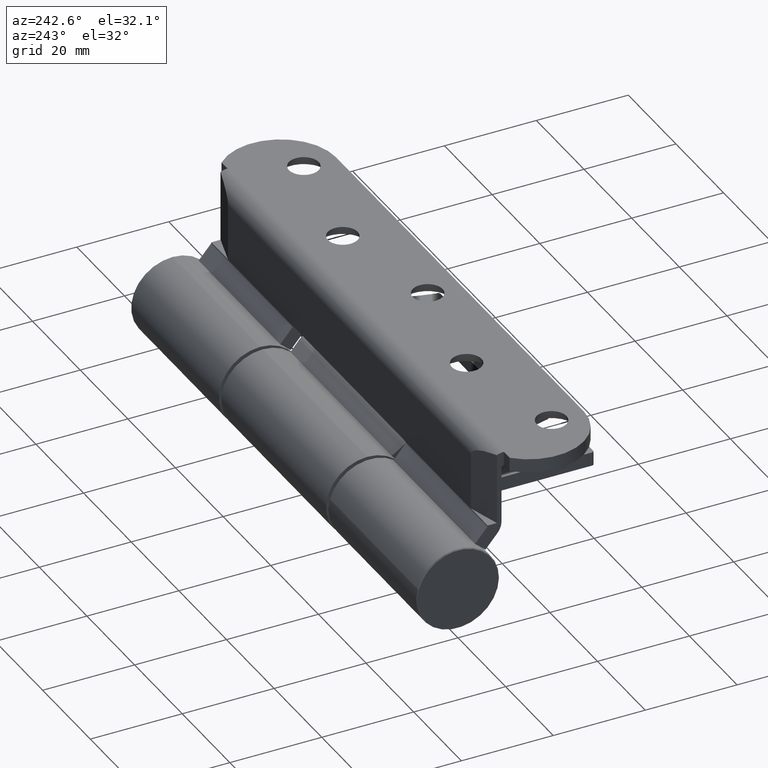
[diagram: clean part render]
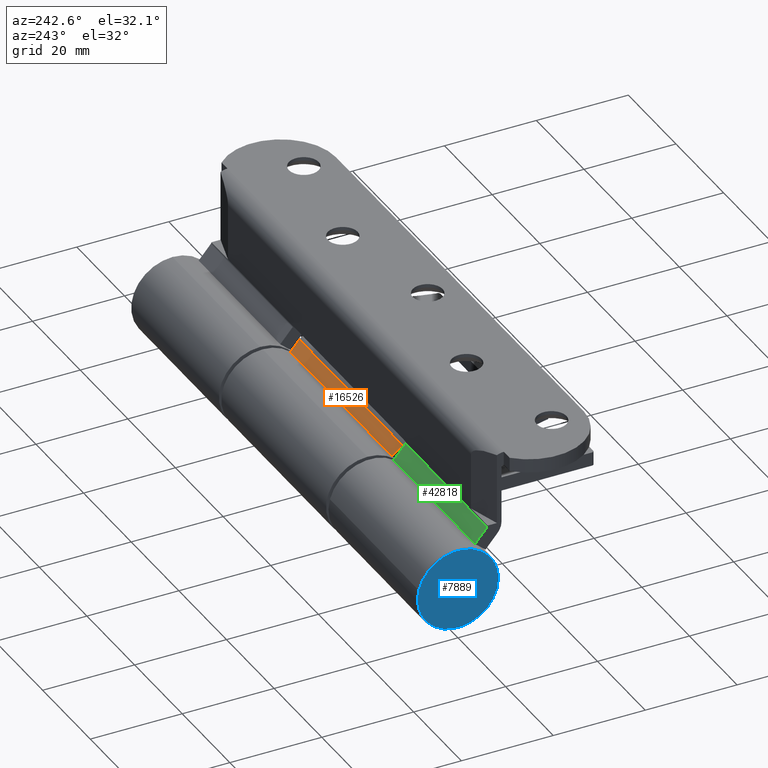
[diagram: same view with three faces highlighted in distinct colors, each labeled with its STEP entity id]
A machine part, auxiliary view with three faces highlighted in distinct colors.
Their STEP definitions:

[orange] entity #16526 — the highlighted planar face has unit normal (-0, -0.6698, -0.7426).
#1108 = VECTOR ( 'NONE', #43775, 1000.000000000000114 ) ;
#1415 = CARTESIAN_POINT ( 'NONE',  ( -7.847930449377619411, -9.098935908627518998, 42.00000000000000000 ) ) ;
#3538 = CARTESIAN_POINT ( 'NONE',  ( -5.678297278168219719, -7.141914310655608666, 42.00000000000000000 ) ) ;
#3735 = EDGE_CURVE ( 'NONE', #31761, #22497, #16069, .T. ) ;
#4716 = DIRECTION ( 'NONE',  ( -0.6697871817255042215, 0.7425531167507186669, -5.473822126268817899E-48 ) ) ;
#10597 = VECTOR ( 'NONE', #44746, 1000.000000000000000 ) ;
#12052 = VERTEX_POINT ( 'NONE', #17942 ) ;
#12161 = DIRECTION ( 'NONE',  ( -1.026341648675405863E-48, 0.000000000000000000, -1.000000000000000000 ) ) ;
#13240 = PLANE ( 'NONE',  #36281 ) ;
#13702 = EDGE_LOOP ( 'NONE', ( #37325, #47317, #45358, #16587 ) ) ;
#14293 = CARTESIAN_POINT ( 'NONE',  ( -8.937882804729733621, -10.08207920146140424, -22.00000000000000000 ) ) ;
#14747 = LINE ( 'NONE', #44725, #44274 ) ;
#16069 = LINE ( 'NONE', #1415, #22406 ) ;
#16526 = ADVANCED_FACE ( 'NONE', ( #38125 ), #13240, .F. ) ;
#16587 = ORIENTED_EDGE ( 'NONE', *, *, #28261, .F. ) ;
#17942 = CARTESIAN_POINT ( 'NONE',  ( -5.678297278168217943, -7.141914310655608666, -21.24999999999999645 ) ) ;
#17959 = LINE ( 'NONE', #3538, #10597 ) ;
#20823 = CARTESIAN_POINT ( 'NONE',  ( -7.847930449377619411, -9.098935908627518998, -21.74921220509393294 ) ) ;
#22213 = EDGE_CURVE ( 'NONE', #22497, #12052, #36238, .T. ) ;
#22406 = VECTOR ( 'NONE', #12161, 1000.000000000000000 ) ;
#22497 = VERTEX_POINT ( 'NONE', #20823 ) ;
#24204 = DIRECTION ( 'NONE',  ( -0.7425531167507186669, -0.6697871817255042215, -4.105366594701612512E-48 ) ) ;
#28261 = EDGE_CURVE ( 'NONE', #47093, #12052, #17959, .T. ) ;
#28959 = CARTESIAN_POINT ( 'NONE',  ( -5.678297278168211726, -7.141914310655602449, 21.25000000000000000 ) ) ;
#31761 = VERTEX_POINT ( 'NONE', #34944 ) ;
#34944 = CARTESIAN_POINT ( 'NONE',  ( -7.847930449377619411, -9.098935908627518998, 21.74921220509394004 ) ) ;
#36238 = LINE ( 'NONE', #14293, #1108 ) ;
#36281 = AXIS2_PLACEMENT_3D ( 'NONE', #46391, #4716, #24204 ) ;
#37325 = ORIENTED_EDGE ( 'NONE', *, *, #41253, .T. ) ;
#37884 = DIRECTION ( 'NONE',  ( -0.7319467401631388759, -0.6602201690463284089, 0.1684140669569851589 ) ) ;
#38125 = FACE_OUTER_BOUND ( 'NONE', #13702, .T. ) ;
#41253 = EDGE_CURVE ( 'NONE', #47093, #31761, #14747, .T. ) ;
#43775 = DIRECTION ( 'NONE',  ( 0.7319467401631388759, 0.6602201690463284089, 0.1684140669569851589 ) ) ;
#44274 = VECTOR ( 'NONE', #37884, 1000.000000000000114 ) ;
#44725 = CARTESIAN_POINT ( 'NONE',  ( -8.937882804729731845, -10.08207920146140424, 22.00000000000000000 ) ) ;
#44746 = DIRECTION ( 'NONE',  ( -1.026341648675405863E-48, 0.000000000000000000, -1.000000000000000000 ) ) ;
#45358 = ORIENTED_EDGE ( 'NONE', *, *, #22213, .T. ) ;
#46391 = CARTESIAN_POINT ( 'NONE',  ( -7.847930449377617634, -9.098935908627515445, 42.00000000000000000 ) ) ;
#47093 = VERTEX_POINT ( 'NONE', #28959 ) ;
#47317 = ORIENTED_EDGE ( 'NONE', *, *, #3735, .T. ) ;

[blue] entity #7889 — the highlighted planar face has unit normal (1, -0, 0).
#16 = CIRCLE ( 'NONE', #39732, 8.800000000000004263 ) ;
#1984 = VERTEX_POINT ( 'NONE', #7108 ) ;
#4672 = VERTEX_POINT ( 'NONE', #48198 ) ;
#5330 = EDGE_LOOP ( 'NONE', ( #33064, #33951 ) ) ;
#6700 = PLANE ( 'NONE',  #10150 ) ;
#7108 = CARTESIAN_POINT ( 'NONE',  ( 37.00000000000000711, 1.089935651241144357E-15, -8.799999999999997158 ) ) ;
#7889 = ADVANCED_FACE ( 'NONE', ( #10392 ), #6700, .F. ) ;
#9088 = CARTESIAN_POINT ( 'NONE',  ( 37.00000000000000711, -4.814824860968089633E-32, 8.673617379884039416E-16 ) ) ;
#10150 = AXIS2_PLACEMENT_3D ( 'NONE', #36718, #11092, #21606 ) ;
#10392 = FACE_OUTER_BOUND ( 'NONE', #5330, .T. ) ;
#11092 = DIRECTION ( 'NONE',  ( -1.000000000000000000, -4.650432772331849413E-32, 2.203093373026480964E-32 ) ) ;
#21606 = DIRECTION ( 'NONE',  ( 2.203093373026480964E-32, 0.000000000000000000, 1.000000000000000000 ) ) ;
#23238 = DIRECTION ( 'NONE',  ( -1.000000000000000000, -4.650432772331849413E-32, -1.263828560216439197E-31 ) ) ;
#23945 = DIRECTION ( 'NONE',  ( 0.000000000000000000, 0.000000000000000000, 1.000000000000000000 ) ) ;
#25756 = CARTESIAN_POINT ( 'NONE',  ( 37.00000000000000711, -4.814824860968089633E-32, 8.673617379884039416E-16 ) ) ;
#31785 = EDGE_CURVE ( 'NONE', #4672, #1984, #46483, .T. ) ;
#32833 = DIRECTION ( 'NONE',  ( 0.000000000000000000, 0.000000000000000000, 1.000000000000000000 ) ) ;
#33064 = ORIENTED_EDGE ( 'NONE', *, *, #31785, .F. ) ;
#33951 = ORIENTED_EDGE ( 'NONE', *, *, #35642, .F. ) ;
#35642 = EDGE_CURVE ( 'NONE', #1984, #4672, #16, .T. ) ;
#36718 = CARTESIAN_POINT ( 'NONE',  ( 37.00000000000000711, 8.800000000000002487, 1.061530116225963303E-15 ) ) ;
#39732 = AXIS2_PLACEMENT_3D ( 'NONE', #25756, #39888, #32833 ) ;
#39888 = DIRECTION ( 'NONE',  ( -1.000000000000000000, -4.650432772331849413E-32, -1.263828560216439197E-31 ) ) ;
#41821 = AXIS2_PLACEMENT_3D ( 'NONE', #9088, #23238, #23945 ) ;
#46483 = CIRCLE ( 'NONE', #41821, 8.800000000000004263 ) ;
#48198 = CARTESIAN_POINT ( 'NONE',  ( 37.00000000000000711, -4.814824860968089633E-32, 8.800000000000006040 ) ) ;

[green] entity #42818 — the highlighted planar face has unit normal (0, 0.7575, 0.6528).
#147 = CARTESIAN_POINT ( 'NONE',  ( -24.12125155963738976, 64.00000000000000000, 16.14068967821274470 ) ) ;
#2848 = VERTEX_POINT ( 'NONE', #18702 ) ;
#2971 = EDGE_LOOP ( 'NONE', ( #29208, #28168, #41326, #39032 ) ) ;
#3320 = CARTESIAN_POINT ( 'NONE',  ( -26.76069628027380887, 64.00000000000000000, 19.20326990000362599 ) ) ;
#3763 = DIRECTION ( 'NONE',  ( -0.6528387823126776679, 0.000000000000000000, 0.7574968807252608904 ) ) ;
#3875 = VECTOR ( 'NONE', #44525, 1000.000000000000000 ) ;
#6308 = VECTOR ( 'NONE', #23782, 1000.000000000000114 ) ;
#7416 = DIRECTION ( 'NONE',  ( -0.7574968807252608904, 0.000000000000000000, -0.6528387823126776679 ) ) ;
#9868 = CARTESIAN_POINT ( 'NONE',  ( 0.2808926133373232381, 23.75000000000000000, -12.17341878904937147 ) ) ;
#10908 = AXIS2_PLACEMENT_3D ( 'NONE', #19118, #7416, #3763 ) ;
#10960 = VERTEX_POINT ( 'NONE', #25661 ) ;
#11361 = LINE ( 'NONE', #3320, #3875 ) ;
#11624 = LINE ( 'NONE', #147, #18853 ) ;
#12330 = LINE ( 'NONE', #22609, #37797 ) ;
#14993 = PLANE ( 'NONE',  #10908 ) ;
#17246 = EDGE_CURVE ( 'NONE', #42242, #2848, #12330, .T. ) ;
#18702 = CARTESIAN_POINT ( 'NONE',  ( -26.76069628027381242, 58.00000000000000000, 19.20326990000362599 ) ) ;
#18853 = VECTOR ( 'NONE', #37000, 1000.000000000000000 ) ;
#19118 = CARTESIAN_POINT ( 'NONE',  ( -24.00000000000001421, 64.00000000000000000, 15.99999999999998224 ) ) ;
#22609 = CARTESIAN_POINT ( 'NONE',  ( 0.2808926133372989797, 58.00000000000002842, -12.17341878904934127 ) ) ;
#23048 = CARTESIAN_POINT ( 'NONE',  ( -24.12125155963738621, 23.75000000000000000, 16.14068967821273048 ) ) ;
#23782 = DIRECTION ( 'NONE',  ( 0.6528387823126771128, 0.000000000000000000, -0.7574968807252613345 ) ) ;
#25661 = CARTESIAN_POINT ( 'NONE',  ( -26.76069628027381242, 23.75000000000000000, 19.20326990000362599 ) ) ;
#27930 = LINE ( 'NONE', #9868, #6308 ) ;
#28168 = ORIENTED_EDGE ( 'NONE', *, *, #17246, .F. ) ;
#29208 = ORIENTED_EDGE ( 'NONE', *, *, #36780, .F. ) ;
#33811 = DIRECTION ( 'NONE',  ( -0.6528387823126771128, -6.633252920535645158E-16, 0.7574968807252613345 ) ) ;
#34853 = CARTESIAN_POINT ( 'NONE',  ( -24.12125155963737910, 58.00000000000000000, 16.14068967821274470 ) ) ;
#35846 = VERTEX_POINT ( 'NONE', #23048 ) ;
#36780 = EDGE_CURVE ( 'NONE', #2848, #10960, #11361, .T. ) ;
#37000 = DIRECTION ( 'NONE',  ( 0.000000000000000000, -1.000000000000000000, 0.000000000000000000 ) ) ;
#37797 = VECTOR ( 'NONE', #33811, 1000.000000000000114 ) ;
#39032 = ORIENTED_EDGE ( 'NONE', *, *, #45737, .F. ) ;
#40834 = FACE_OUTER_BOUND ( 'NONE', #2971, .T. ) ;
#41326 = ORIENTED_EDGE ( 'NONE', *, *, #47216, .T. ) ;
#42242 = VERTEX_POINT ( 'NONE', #34853 ) ;
#42818 = ADVANCED_FACE ( 'NONE', ( #40834 ), #14993, .T. ) ;
#44525 = DIRECTION ( 'NONE',  ( 0.000000000000000000, -1.000000000000000000, 0.000000000000000000 ) ) ;
#45737 = EDGE_CURVE ( 'NONE', #10960, #35846, #27930, .T. ) ;
#47216 = EDGE_CURVE ( 'NONE', #42242, #35846, #11624, .T. ) ;